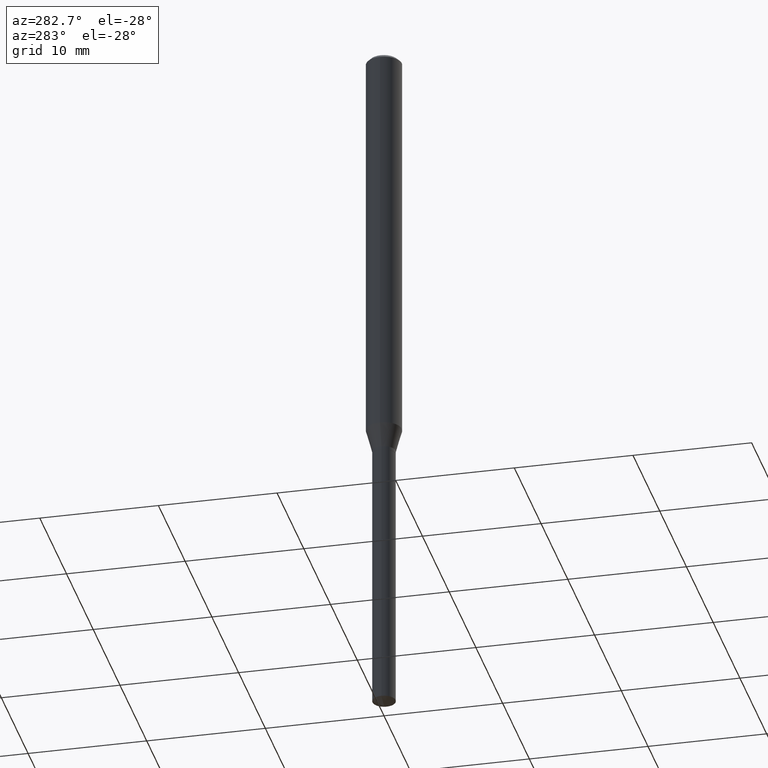
[diagram: clean part render]
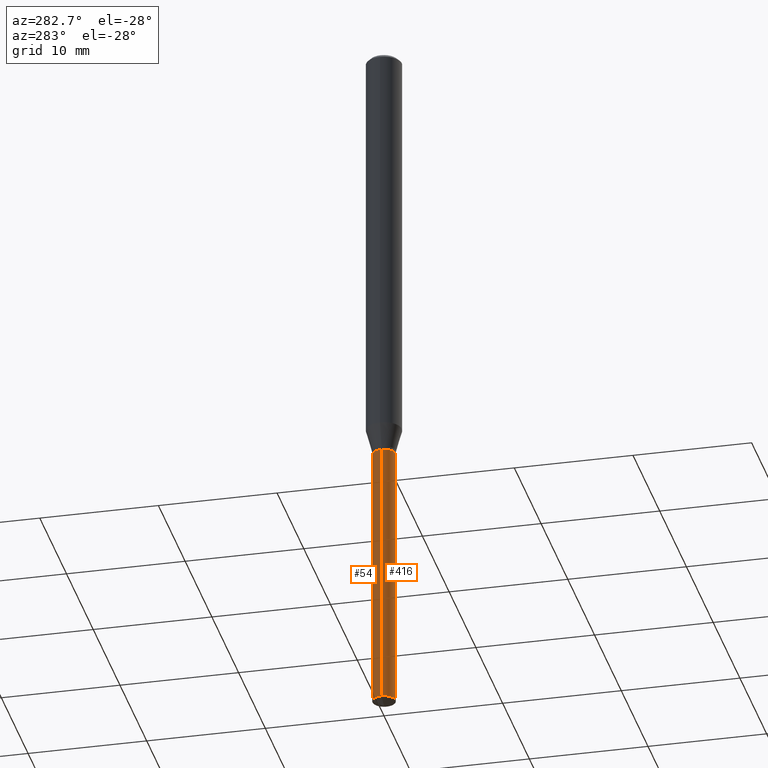
[diagram: same view with one multi-face feature highlighted, each face labeled with its STEP entity id]
A machine part, auxiliary view. The highlighted faces form ONE feature: a constant-radius fillet chain: 2 tangent blend faces with common blend radius 0.9754 mm. The faces share edges in the B-rep.
Their STEP definitions:
[1] entity #416 (Cylinder):
#4 = VECTOR ( 'NONE', #12, 39.37007874015748143 ) ;
#12 = DIRECTION ( 'NONE',  ( -2.445468806185136877E-29, 3.491481338843145188E-15, 1.000000000000000000 ) ) ;
#19 = CARTESIAN_POINT ( 'NONE',  ( 5.732408232256526477E-29, -8.184359710061769767E-15, -2.344093785926848028 ) ) ;
#20 = CARTESIAN_POINT ( 'NONE',  ( -0.03839999999999999664, -6.334420026934666468E-15, -1.440700000000000314 ) ) ;
#31 = EDGE_CURVE ( 'NONE', #425, #485, #168, .T. ) ;
#55 = VERTEX_POINT ( 'NONE', #20 ) ;
#71 = CIRCLE ( 'NONE', #364, 0.03839999999999999664 ) ;
#74 = VERTEX_POINT ( 'NONE', #254 ) ;
#78 = CARTESIAN_POINT ( 'NONE',  ( 3.523186909070927115E-29, -5.030177164871321543E-15, -1.440700000000000314 ) ) ;
#81 = CARTESIAN_POINT ( 'NONE',  ( -0.03839999999999999664, -4.757328754339442356E-15, -1.440700000000000314 ) ) ;
#98 = DIRECTION ( 'NONE',  ( 1.000000000000000000, -6.982962677686277755E-15, 0.000000000000000000 ) ) ;
#107 = EDGE_CURVE ( 'NONE', #74, #425, #71, .T. ) ;
#109 = EDGE_CURVE ( 'NONE', #55, #485, #339, .T. ) ;
#129 = DIRECTION ( 'NONE',  ( -2.445468806185136597E-29, 3.491481338843145583E-15, 1.000000000000000000 ) ) ;
#167 = FACE_OUTER_BOUND ( 'NONE', #407, .T. ) ;
#168 = LINE ( 'NONE', #203, #350 ) ;
#178 = DIRECTION ( 'NONE',  ( -2.445468806185136597E-29, 3.491481338843145583E-15, 1.000000000000000000 ) ) ;
#189 = AXIS2_PLACEMENT_3D ( 'NONE', #456, #250, #470 ) ;
#203 = CARTESIAN_POINT ( 'NONE',  ( 0.03839999999999999664, -5.298322931694473957E-15, -1.440700000000000314 ) ) ;
#226 = ORIENTED_EDGE ( 'NONE', *, *, #107, .T. ) ;
#243 = DIRECTION ( 'NONE',  ( -2.445468806185136877E-29, 3.491481338843145188E-15, 1.000000000000000000 ) ) ;
#250 = DIRECTION ( 'NONE',  ( -2.445468806185136597E-29, 3.491481338843145583E-15, 1.000000000000000000 ) ) ;
#254 = CARTESIAN_POINT ( 'NONE',  ( -0.03839999999999998970, -7.911511299529891368E-15, -2.344093785926848028 ) ) ;
#267 = ORIENTED_EDGE ( 'NONE', *, *, #31, .T. ) ;
#273 = ORIENTED_EDGE ( 'NONE', *, *, #109, .F. ) ;
#274 = CARTESIAN_POINT ( 'NONE',  ( 0.03839999999999999664, -5.298322931694473957E-15, -1.440700000000000314 ) ) ;
#308 = ORIENTED_EDGE ( 'NONE', *, *, #483, .F. ) ;
#339 = CIRCLE ( 'NONE', #189, 0.03839999999999999664 ) ;
#344 = AXIS2_PLACEMENT_3D ( 'NONE', #78, #129, #436 ) ;
#350 = VECTOR ( 'NONE', #243, 39.37007874015748143 ) ;
#354 = LINE ( 'NONE', #81, #4 ) ;
#364 = AXIS2_PLACEMENT_3D ( 'NONE', #19, #178, #98 ) ;
#407 = EDGE_LOOP ( 'NONE', ( #308, #226, #267, #273 ) ) ;
#416 = ADVANCED_FACE ( 'NONE', ( #167 ), #472, .T. ) ;
#425 = VERTEX_POINT ( 'NONE', #448 ) ;
#436 = DIRECTION ( 'NONE',  ( 1.000000000000000000, -6.982962677686277755E-15, 0.000000000000000000 ) ) ;
#448 = CARTESIAN_POINT ( 'NONE',  ( 0.03839999999999998970, -8.452505476884922181E-15, -2.344093785926848028 ) ) ;
#456 = CARTESIAN_POINT ( 'NONE',  ( 3.523186909070927115E-29, -5.030177164871321543E-15, -1.440700000000000314 ) ) ;
#470 = DIRECTION ( 'NONE',  ( 1.000000000000000000, -6.982962677686277755E-15, 0.000000000000000000 ) ) ;
#472 = CYLINDRICAL_SURFACE ( 'NONE', #344, 0.03839999999999999664 ) ;
#483 = EDGE_CURVE ( 'NONE', #74, #55, #354, .T. ) ;
#485 = VERTEX_POINT ( 'NONE', #274 ) ;
[2] entity #54 (Cylinder):
#4 = VECTOR ( 'NONE', #12, 39.37007874015748143 ) ;
#12 = DIRECTION ( 'NONE',  ( -2.445468806185136877E-29, 3.491481338843145188E-15, 1.000000000000000000 ) ) ;
#20 = CARTESIAN_POINT ( 'NONE',  ( -0.03839999999999999664, -6.334420026934666468E-15, -1.440700000000000314 ) ) ;
#25 = CYLINDRICAL_SURFACE ( 'NONE', #29, 0.03839999999999999664 ) ;
#29 = AXIS2_PLACEMENT_3D ( 'NONE', #102, #144, #292 ) ;
#31 = EDGE_CURVE ( 'NONE', #425, #485, #168, .T. ) ;
#52 = FACE_OUTER_BOUND ( 'NONE', #146, .T. ) ;
#54 = ADVANCED_FACE ( 'NONE', ( #52 ), #25, .T. ) ;
#55 = VERTEX_POINT ( 'NONE', #20 ) ;
#74 = VERTEX_POINT ( 'NONE', #254 ) ;
#81 = CARTESIAN_POINT ( 'NONE',  ( -0.03839999999999999664, -4.757328754339442356E-15, -1.440700000000000314 ) ) ;
#102 = CARTESIAN_POINT ( 'NONE',  ( 3.523186909070927115E-29, -5.030177164871321543E-15, -1.440700000000000314 ) ) ;
#144 = DIRECTION ( 'NONE',  ( -2.445468806185136597E-29, 3.491481338843145583E-15, 1.000000000000000000 ) ) ;
#146 = EDGE_LOOP ( 'NONE', ( #378, #222, #375, #388 ) ) ;
#168 = LINE ( 'NONE', #203, #350 ) ;
#203 = CARTESIAN_POINT ( 'NONE',  ( 0.03839999999999999664, -5.298322931694473957E-15, -1.440700000000000314 ) ) ;
#213 = EDGE_CURVE ( 'NONE', #485, #55, #474, .T. ) ;
#222 = ORIENTED_EDGE ( 'NONE', *, *, #483, .T. ) ;
#228 = AXIS2_PLACEMENT_3D ( 'NONE', #240, #360, #327 ) ;
#240 = CARTESIAN_POINT ( 'NONE',  ( 5.732408232256526477E-29, -8.184359710061769767E-15, -2.344093785926848028 ) ) ;
#243 = DIRECTION ( 'NONE',  ( -2.445468806185136877E-29, 3.491481338843145188E-15, 1.000000000000000000 ) ) ;
#254 = CARTESIAN_POINT ( 'NONE',  ( -0.03839999999999998970, -7.911511299529891368E-15, -2.344093785926848028 ) ) ;
#274 = CARTESIAN_POINT ( 'NONE',  ( 0.03839999999999999664, -5.298322931694473957E-15, -1.440700000000000314 ) ) ;
#279 = CARTESIAN_POINT ( 'NONE',  ( 3.523186909070927115E-29, -5.030177164871321543E-15, -1.440700000000000314 ) ) ;
#286 = CIRCLE ( 'NONE', #228, 0.03839999999999999664 ) ;
#292 = DIRECTION ( 'NONE',  ( 1.000000000000000000, -6.982962677686277755E-15, 0.000000000000000000 ) ) ;
#315 = EDGE_CURVE ( 'NONE', #425, #74, #286, .T. ) ;
#327 = DIRECTION ( 'NONE',  ( 1.000000000000000000, -6.982962677686277755E-15, 0.000000000000000000 ) ) ;
#350 = VECTOR ( 'NONE', #243, 39.37007874015748143 ) ;
#354 = LINE ( 'NONE', #81, #4 ) ;
#360 = DIRECTION ( 'NONE',  ( -2.445468806185136597E-29, 3.491481338843145583E-15, 1.000000000000000000 ) ) ;
#362 = DIRECTION ( 'NONE',  ( 1.000000000000000000, -6.982962677686277755E-15, 0.000000000000000000 ) ) ;
#375 = ORIENTED_EDGE ( 'NONE', *, *, #213, .F. ) ;
#378 = ORIENTED_EDGE ( 'NONE', *, *, #315, .T. ) ;
#388 = ORIENTED_EDGE ( 'NONE', *, *, #31, .F. ) ;
#423 = DIRECTION ( 'NONE',  ( -2.445468806185136597E-29, 3.491481338843145583E-15, 1.000000000000000000 ) ) ;
#425 = VERTEX_POINT ( 'NONE', #448 ) ;
#444 = AXIS2_PLACEMENT_3D ( 'NONE', #279, #423, #362 ) ;
#448 = CARTESIAN_POINT ( 'NONE',  ( 0.03839999999999998970, -8.452505476884922181E-15, -2.344093785926848028 ) ) ;
#474 = CIRCLE ( 'NONE', #444, 0.03839999999999999664 ) ;
#483 = EDGE_CURVE ( 'NONE', #74, #55, #354, .T. ) ;
#485 = VERTEX_POINT ( 'NONE', #274 ) ;